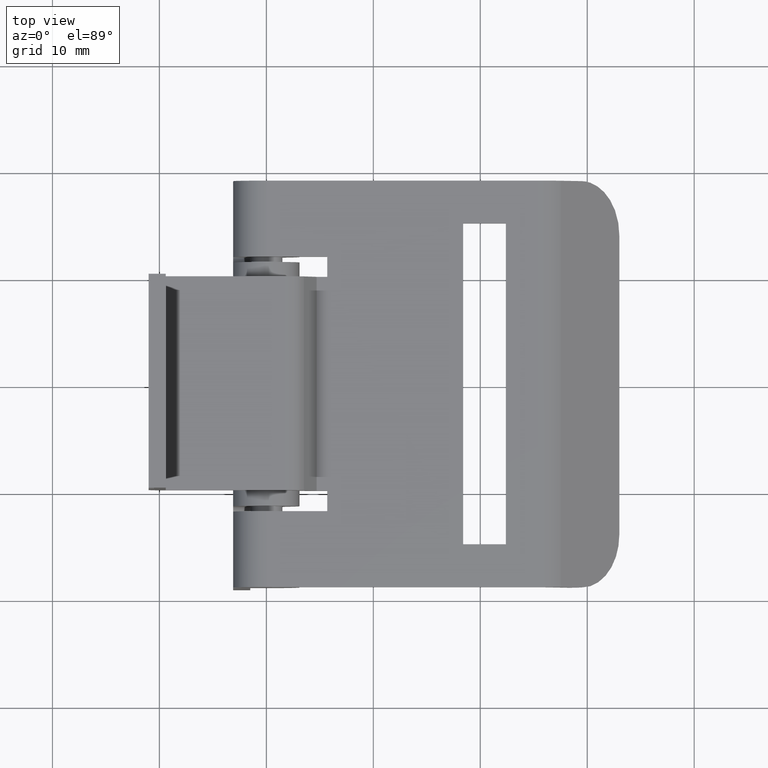
[diagram: clean part render]
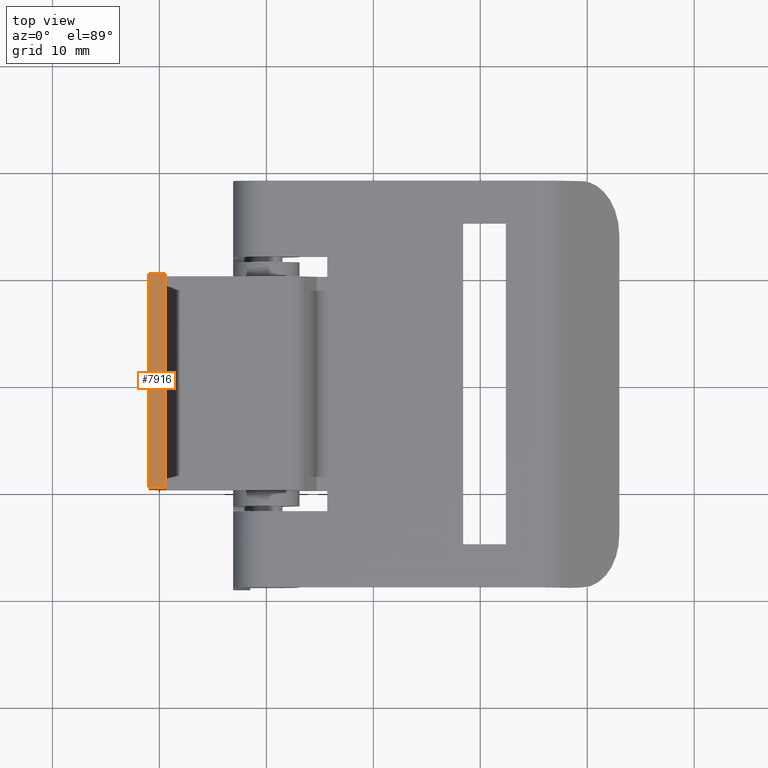
[diagram: same view with one face highlighted and labeled with its STEP entity id]
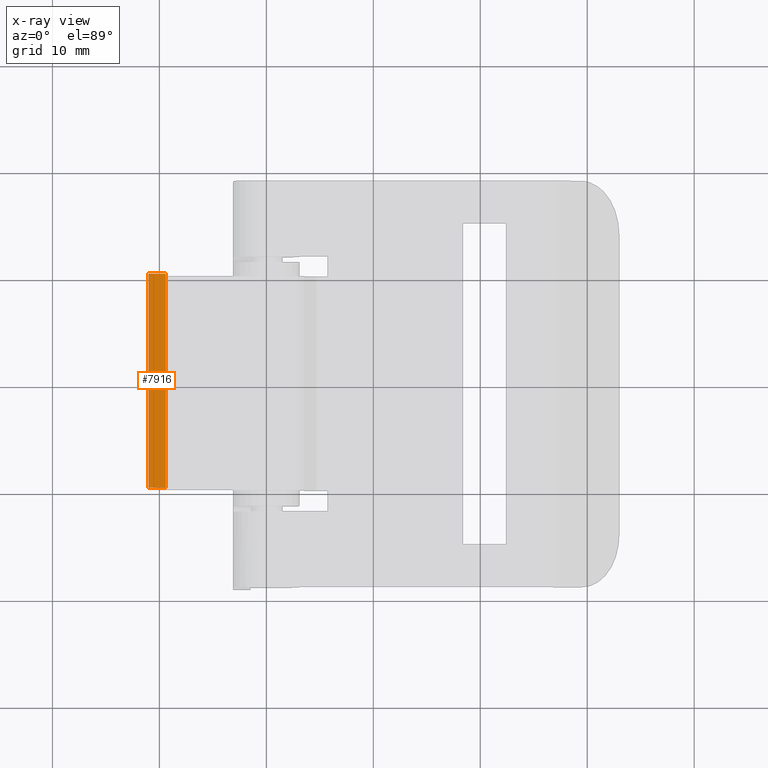
[diagram: x-ray of the same camera — body ghosted, the highlighted face saturated]
A machine part, top view. The second image highlights one B-rep face of the part: STEP entity #7916.
The next image is the same camera in x-ray: the body ghosted, the highlighted face saturated — about 0% of this face is hidden behind the body in this view.
In plain terms, the highlighted face is a freeform B-spline surface patch.
Its self-contained STEP definition (entity closure, byte-faithful):
#7670=CARTESIAN_POINT('',(-9.399994000000000,-10.0,20.0));
#7671=VERTEX_POINT('',#7670);
#7677=CARTESIAN_POINT('',(-11.0,-10.0,20.0));
#7678=VERTEX_POINT('',#7677);
#7679=CARTESIAN_POINT('',(-9.399994000000000,-10.0,20.0));
#7680=CARTESIAN_POINT('',(-11.0,-10.0,20.0));
#7681=QUASI_UNIFORM_CURVE('',1,(#7679,#7680),.UNSPECIFIED.,.F.,.U.);
#7682=EDGE_CURVE('',#7671,#7678,#7681,.T.);
#7816=CARTESIAN_POINT('',(-11.0,10.0,20.0));
#7817=VERTEX_POINT('',#7816);
#7823=CARTESIAN_POINT('',(-9.399994000000000,10.0,20.0));
#7824=VERTEX_POINT('',#7823);
#7825=CARTESIAN_POINT('',(-9.399994000000000,10.0,20.0));
#7826=CARTESIAN_POINT('',(-11.0,10.0,20.0));
#7827=QUASI_UNIFORM_CURVE('',1,(#7825,#7826),.UNSPECIFIED.,.F.,.U.);
#7828=EDGE_CURVE('',#7824,#7817,#7827,.T.);
#7887=CARTESIAN_POINT('',(-11.0,10.0,20.0));
#7888=CARTESIAN_POINT('',(-11.0,-10.0,20.0));
#7889=QUASI_UNIFORM_CURVE('',1,(#7887,#7888),.UNSPECIFIED.,.F.,.U.);
#7890=EDGE_CURVE('',#7817,#7678,#7889,.T.);
#7901=CARTESIAN_POINT('',(-11.079920302315230,-10.998999961236120,20.0));
#7902=CARTESIAN_POINT('',(-9.320073540327925,-10.998999961236120,20.0));
#7903=CARTESIAN_POINT('',(-11.079920302315230,10.999000497677921,20.0));
#7904=CARTESIAN_POINT('',(-9.320073540327925,10.999000497677921,20.0));
#7905=B_SPLINE_SURFACE_WITH_KNOTS('',1,1,((#7901,#7903),(#7902,#7904)),.UNSPECIFIED.,.F.,.F.,.U.,(2,2),(2,2),(0.041708331971243,0.958291749985144),(0.0,21.998000458914039),.UNSPECIFIED.);
#7906=ORIENTED_EDGE('',*,*,#7682,.F.);
#7907=CARTESIAN_POINT('',(-9.399994000000000,10.0,20.0));
#7908=CARTESIAN_POINT('',(-9.399994000000000,-10.0,20.0));
#7909=QUASI_UNIFORM_CURVE('',1,(#7907,#7908),.UNSPECIFIED.,.F.,.U.);
#7910=EDGE_CURVE('',#7824,#7671,#7909,.T.);
#7911=ORIENTED_EDGE('',*,*,#7910,.F.);
#7912=ORIENTED_EDGE('',*,*,#7828,.T.);
#7913=ORIENTED_EDGE('',*,*,#7890,.T.);
#7914=EDGE_LOOP('',(#7906,#7911,#7912,#7913));
#7915=FACE_OUTER_BOUND('',#7914,.T.);
#7916=ADVANCED_FACE('',(#7915),#7905,.T.);